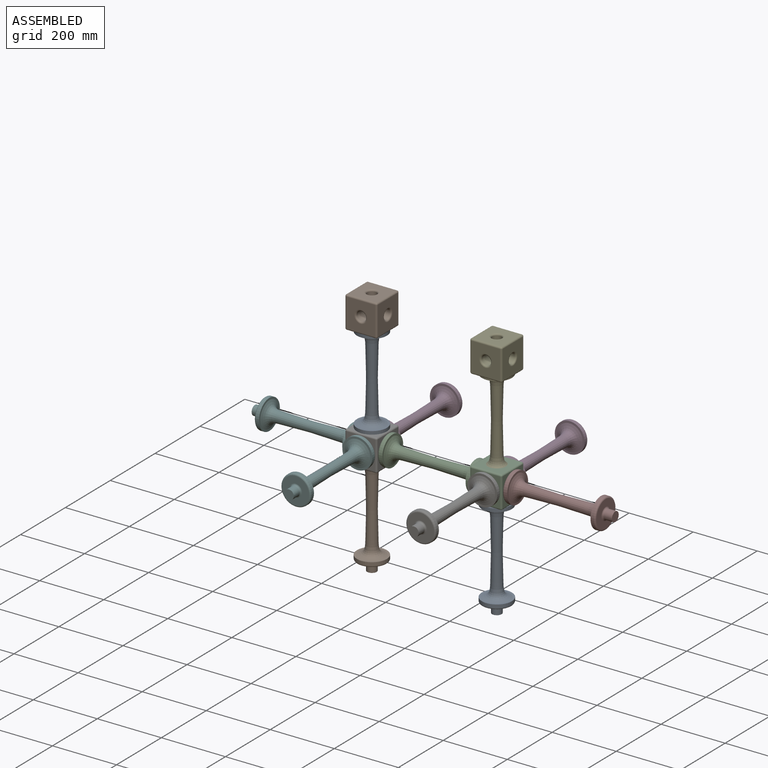
[diagram: assembled view]
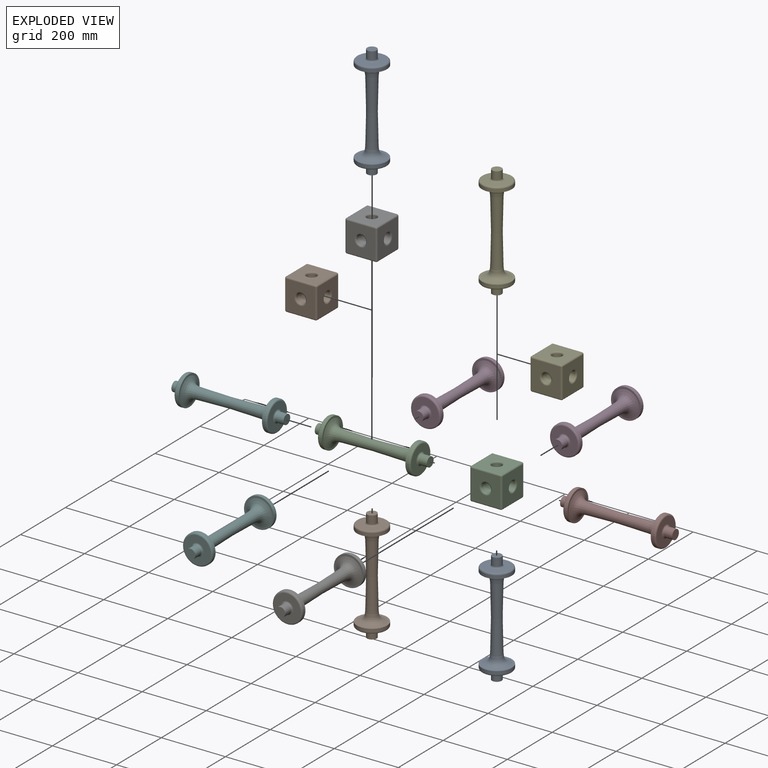
[diagram: exploded view]
GUIDED TOUR — MATED ASSEMBLY (Onshape document 2fd40caba6ee4fb005c2a538, AutoMate assembly 2fd40caba6ee4fb005c2a538_38871087ea2060881fef01aa_3f78a8c371d48ed6c31fac29_default)

This assembly has 15 components, labeled P0..P14 below (a component is one placed occurrence of a part; the same part can appear more than once), held together by 12 mates. A mate is a constraint between two components; its type names the relative motion it leaves free:
  FASTENED — locks the two components together rigidly (no relative motion).
Axis/direction vectors are unit vectors and 'through' points are millimeter coordinates, both in the assembly's world frame.

MATES
  1. FASTENED "Fastened 1": P10 <-> P2, direction (1.000, 0.000, 0.000) through (79.39, -60.10, -34.03) mm
  2. FASTENED "Fastened 3": P0 <-> P2, direction (0.000, 0.000, 1.000) through (129.39, -60.10, -84.03) mm
  3. FASTENED "Fastened 11": P4 <-> P2, direction (0.000, 0.000, 1.000) through (129.39, -60.10, 10.97) mm
  4. FASTENED "Fastened 10": P13 <-> P14, direction (1.000, 0.000, 0.000) through (-310.61, -60.10, -34.03) mm
  5. FASTENED "Fastened 6": P8 <-> P14, direction (0.000, 0.000, 1.000) through (-260.61, -60.10, 15.97) mm
  6. FASTENED "Fastened 8": P5 <-> P14, direction (0.000, 1.000, 0.000) through (-260.61, -110.10, -34.03) mm
  7. FASTENED "Fastened 9": P9 <-> P14, direction (0.000, 0.000, -1.000) through (-260.61, -60.10, -84.03) mm
  8. FASTENED "Fastened 2": P10 <-> P14, direction (-1.000, 0.000, 0.000) through (-210.61, -60.10, -34.03) mm
  9. FASTENED "Fastened 7": P7 <-> P2, direction (-1.000, 0.000, 0.000) through (179.39, -60.10, -34.03) mm
  10. FASTENED "Fastened 12": P6 <-> P2, direction (0.000, 1.000, 0.000) through (129.39, -110.10, -34.03) mm
  11. FASTENED "Fastened 5": P3 <-> P14, direction (0.000, -1.000, 0.000) through (-260.61, -10.10, -34.03) mm
  12. FASTENED "Fastened 4": P11 <-> P2, direction (0.000, -1.000, 0.000) through (129.39, -10.10, -34.03) mm

ASSEMBLY ORDER
  1. P2 — the base component [order heuristic]
  2. P1 — core [order heuristic]
  3. P14 — core [order heuristic]
  4. P10 — core [order heuristic]
  5. P12 — core [order heuristic]
  6. P4 — core [order heuristic]
  7. P9 — core [order heuristic]
  8. P8 — core [order heuristic]
  9. P13 — core [order heuristic]
  10. P6 [order verified]
  11. P5 [order verified]
  12. P11 [order verified]
  13. P3 [order verified]
  14. P0 [order verified]
  15. P7 [order verified]
(P0, P3, P5, P6, P7, P11 verified with a relaxed clearance tolerance: the source model stores slight part interference there.)
Order-tag legend:
  [order verified] — this step's position reverses a verified removal order: the component was checked to insert without passing through the ones already placed.
  [order heuristic] — the first 9 components form the assembly's core: parts whose collision-free extraction could not be verified, listed in mate-graph order.

Of the 15 components, 0 carry the full construction recipe — the FeatureScript program that regenerates the part's solid from scratch; the rest are supplied as boundary geometry only.
Because this assembly has more than 12 components, the tour below covers the 12 most significant ones individually (every recipe-attached component first, then the largest by part volume), in assembly order; the remaining 3 are summarized together in a grouped section at the end.
Each toured component is shown spotlighted twice — in the assembled view, then in the exploded view, where a leader line traces a displaced component back to its assembled socket (saturated green if recipe-attached, orange if geometry-only; every other component desaturated gray) — followed by its recipe or geometry summary and the mates that hold it.
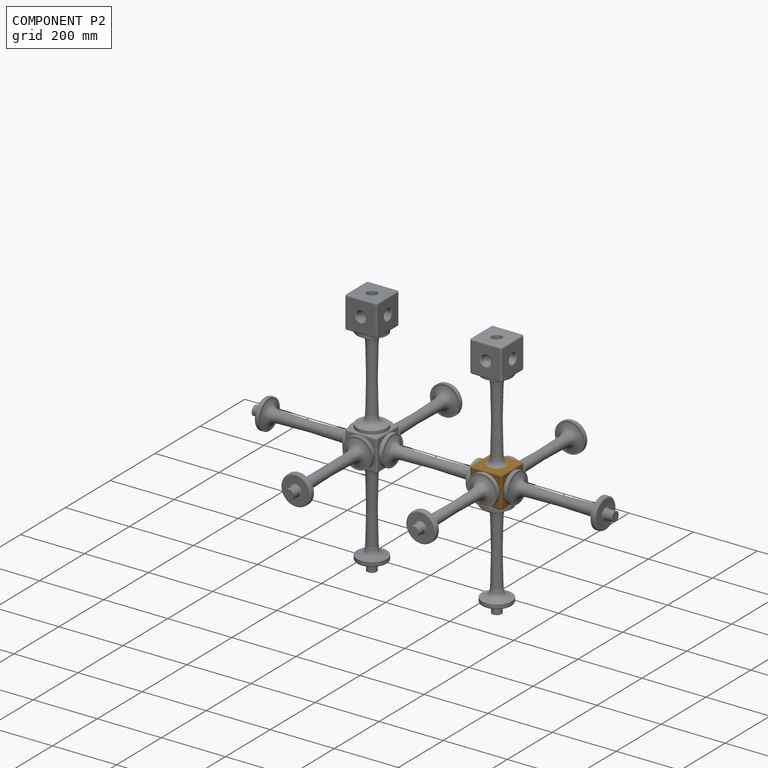
[diagram: component P2 — assembled]
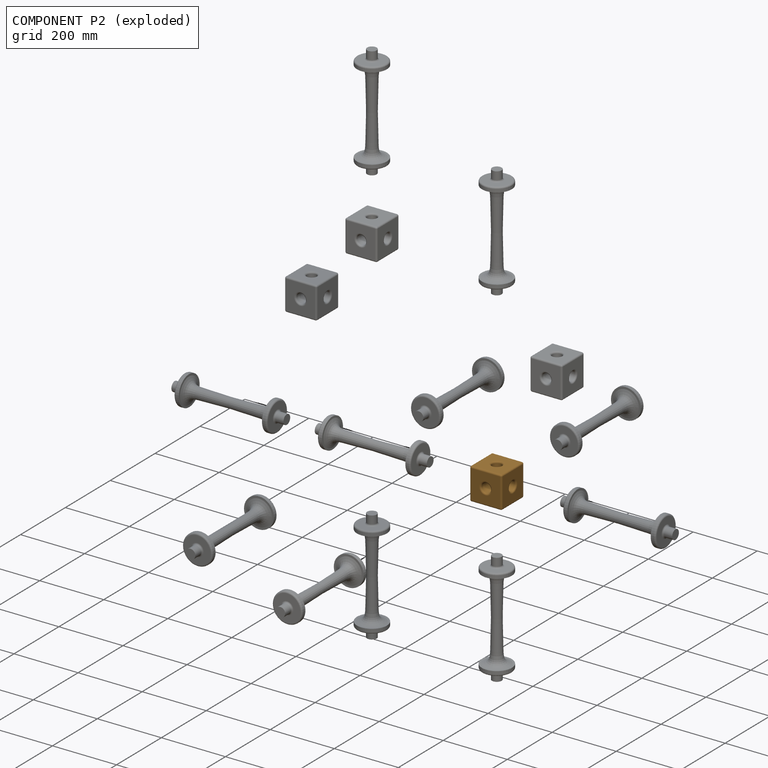
[diagram: component P2 — exploded]
COMPONENT P2 — geometry summary (no construction recipe available for this part):
  bounding box: 100.0 x 100.0 x 100.0 mm
  B-rep topology: 1 solid, 38 faces, 186 edges
  volume: 816596 mm^3 (82% of its bounding box)
  symmetry: 4-fold rotationally symmetric about the x axis; 4-fold rotationally symmetric about the y axis; 4-fold rotationally symmetric about the z axis; mirror-symmetric across its x mid-plane, y mid-plane, z mid-plane
Held by: FASTENED mate "Fastened 1" to P10; FASTENED mate "Fastened 3" to P0; FASTENED mate "Fastened 11" to P4; FASTENED mate "Fastened 7" to P7; FASTENED mate "Fastened 12" to P6; FASTENED mate "Fastened 4" to P11.
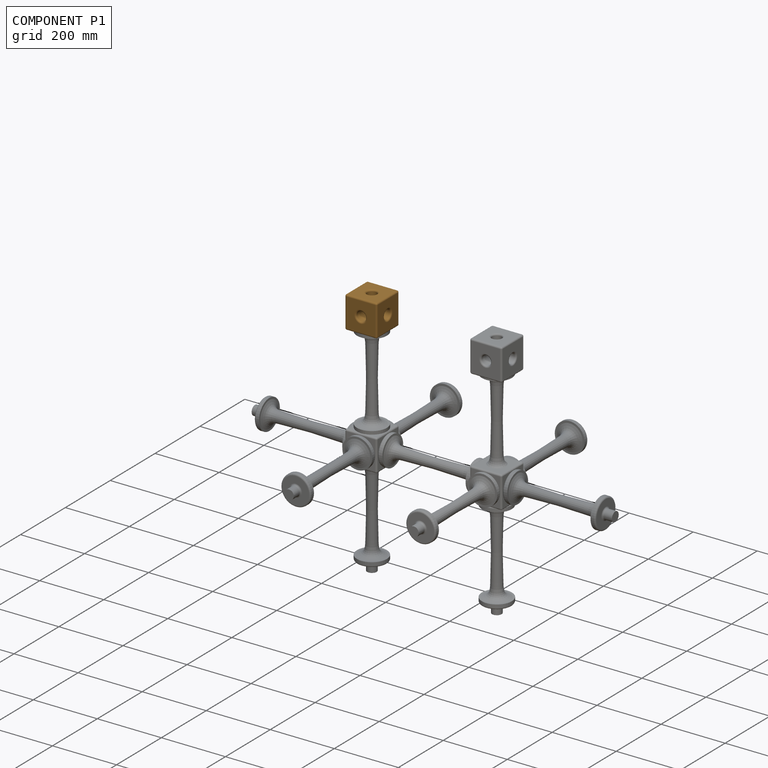
[diagram: component P1 — assembled]
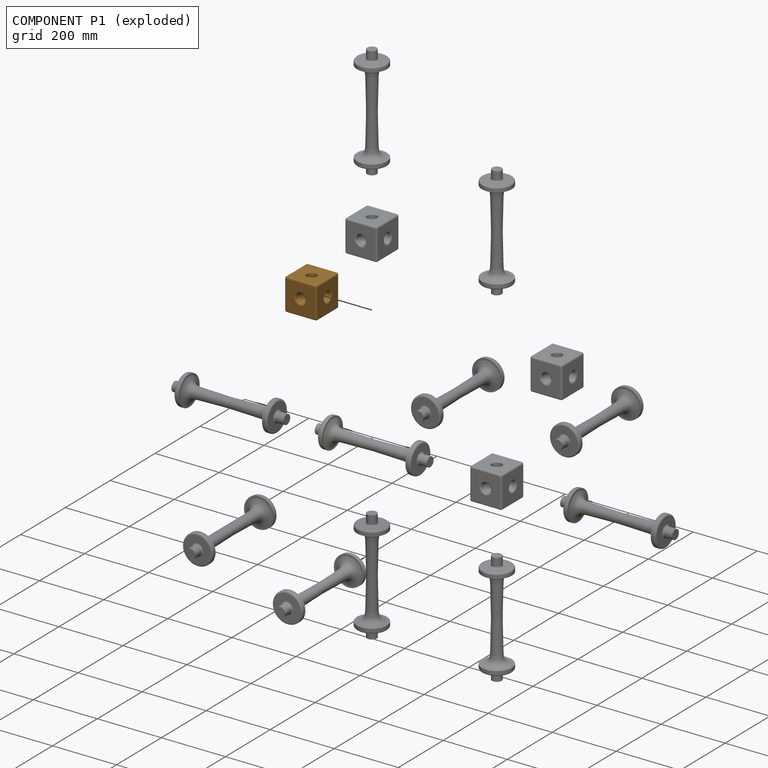
[diagram: component P1 — exploded]
COMPONENT P1 — geometry summary (no construction recipe available for this part):
  bounding box: 100.0 x 100.0 x 100.0 mm
  B-rep topology: 1 solid, 38 faces, 186 edges
  volume: 816596 mm^3 (82% of its bounding box)
  symmetry: 4-fold rotationally symmetric about the x axis; 4-fold rotationally symmetric about the y axis; 4-fold rotationally symmetric about the z axis; mirror-symmetric across its x mid-plane, y mid-plane, z mid-plane
Held by: no mates (free).
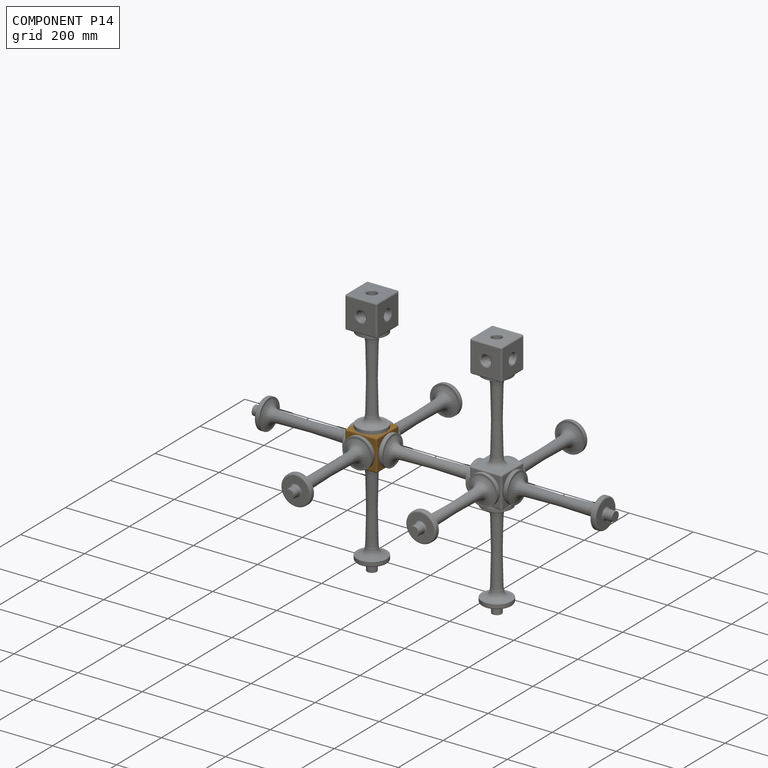
[diagram: component P14 — assembled]
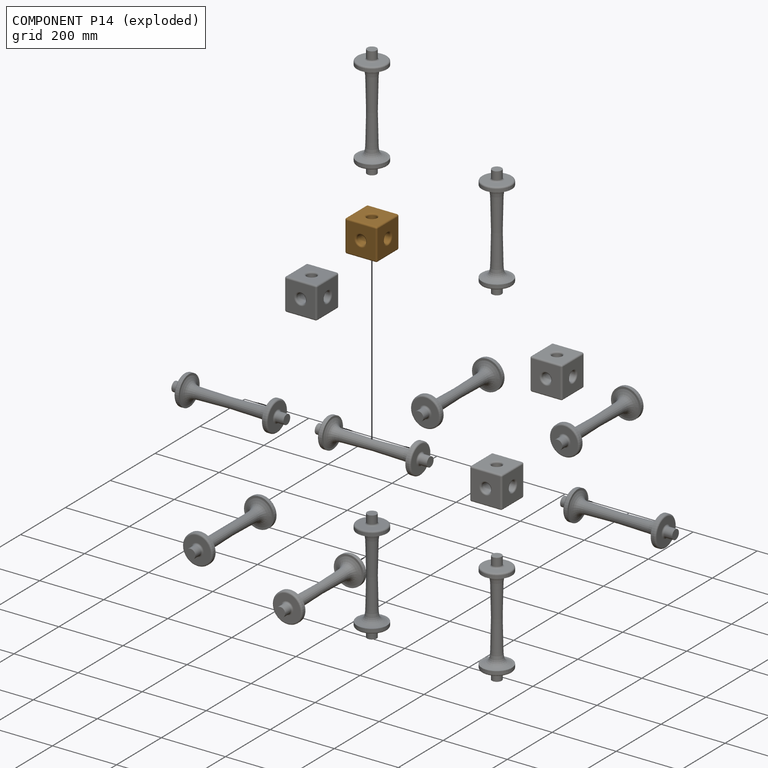
[diagram: component P14 — exploded]
COMPONENT P14 — geometry summary (no construction recipe available for this part):
  bounding box: 100.0 x 100.0 x 100.0 mm
  B-rep topology: 1 solid, 38 faces, 186 edges
  volume: 816596 mm^3 (82% of its bounding box)
  symmetry: 4-fold rotationally symmetric about the x axis; 4-fold rotationally symmetric about the y axis; 4-fold rotationally symmetric about the z axis; mirror-symmetric across its x mid-plane, y mid-plane, z mid-plane
Held by: FASTENED mate "Fastened 10" to P13; FASTENED mate "Fastened 6" to P8; FASTENED mate "Fastened 8" to P5; FASTENED mate "Fastened 9" to P9; FASTENED mate "Fastened 2" to P10; FASTENED mate "Fastened 5" to P3.
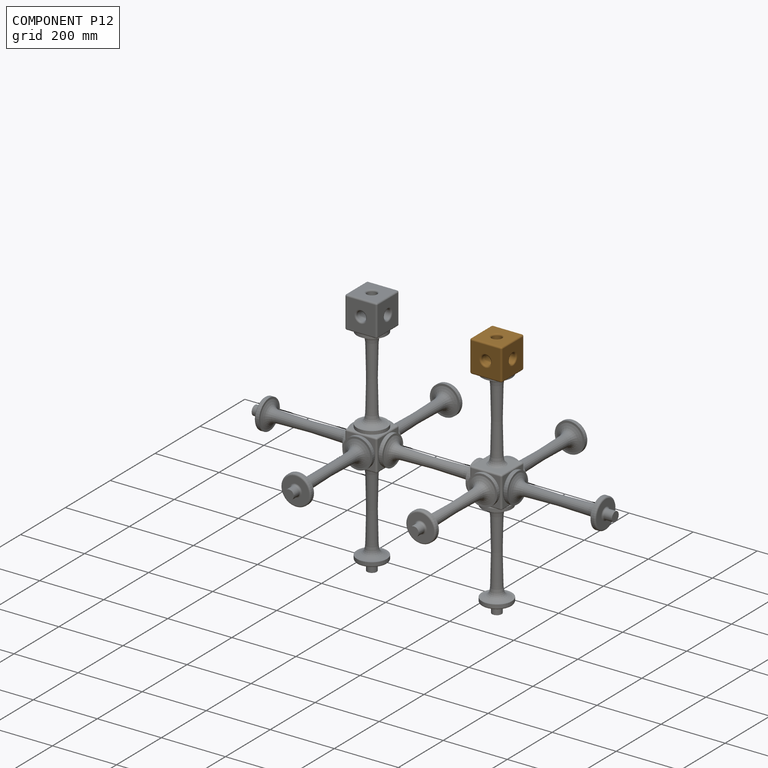
[diagram: component P12 — assembled]
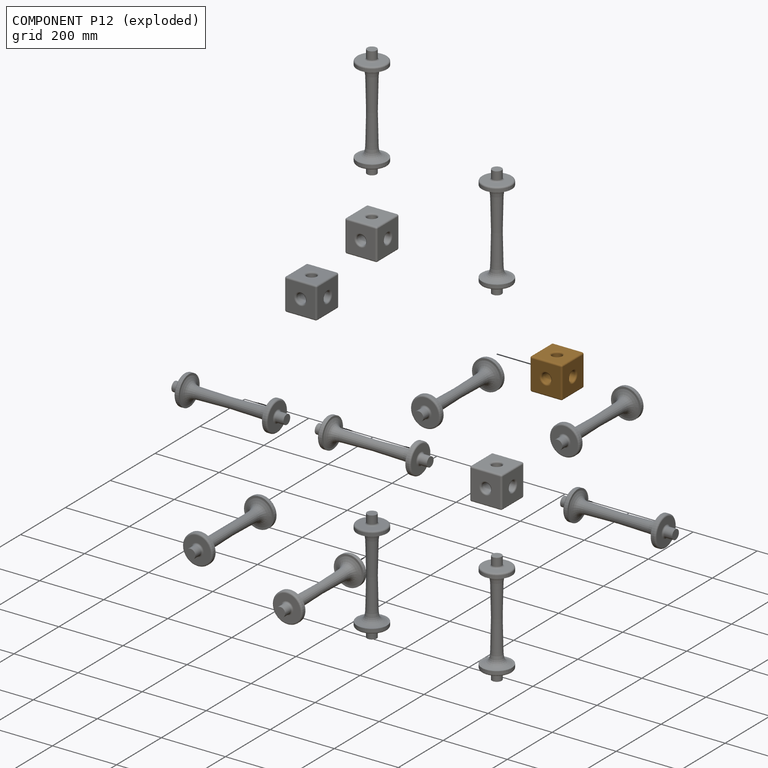
[diagram: component P12 — exploded]
COMPONENT P12 — geometry summary (no construction recipe available for this part):
  bounding box: 100.0 x 100.0 x 100.0 mm
  B-rep topology: 1 solid, 38 faces, 186 edges
  volume: 816596 mm^3 (82% of its bounding box)
  symmetry: 4-fold rotationally symmetric about the x axis; 4-fold rotationally symmetric about the y axis; 4-fold rotationally symmetric about the z axis; mirror-symmetric across its x mid-plane, y mid-plane, z mid-plane
Held by: no mates (free).
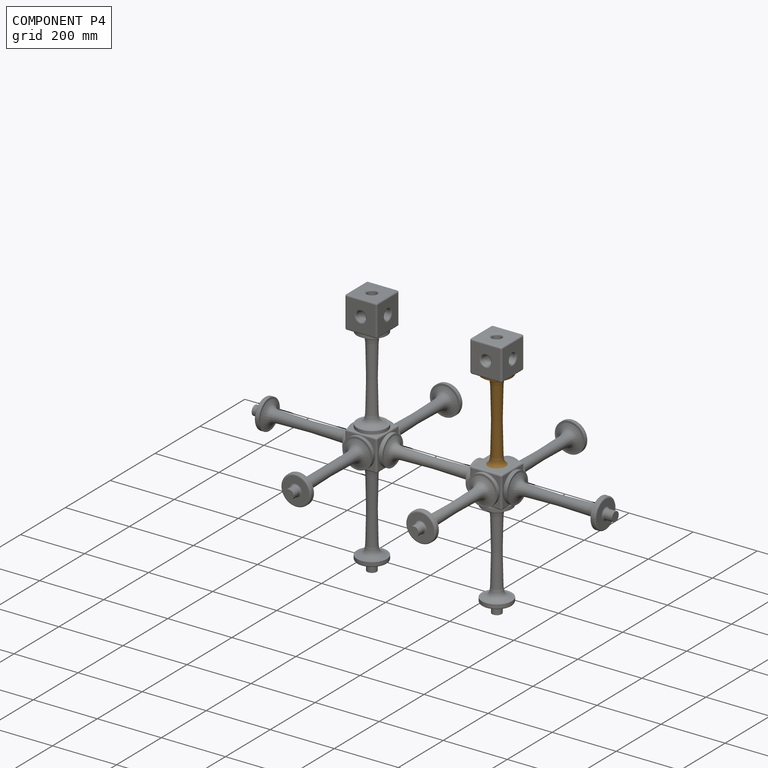
[diagram: component P4 — assembled]
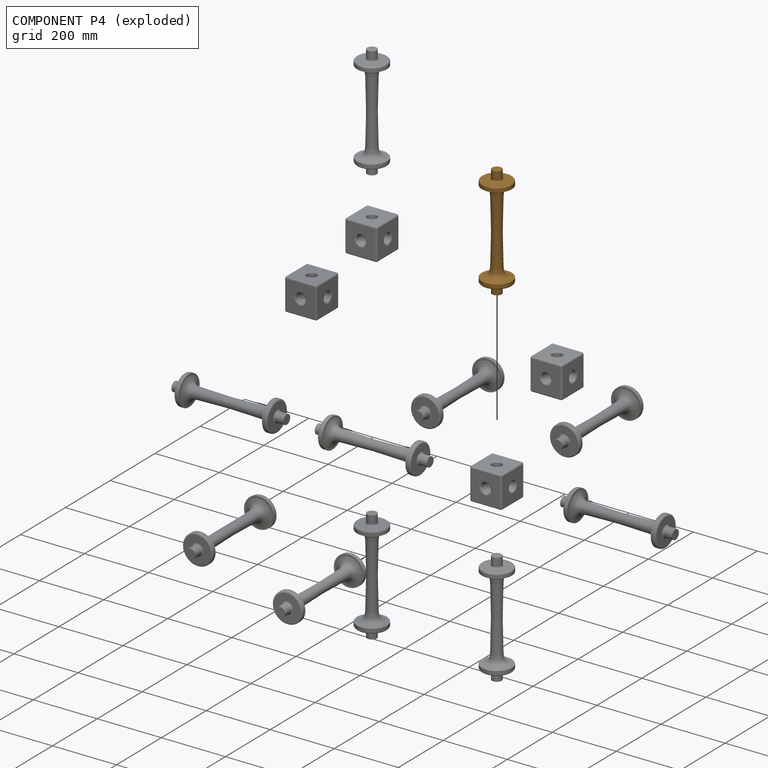
[diagram: component P4 — exploded]
COMPONENT P4 — geometry summary (no construction recipe available for this part):
  bounding box: 350.0 x 101.1 x 101.1 mm
  B-rep topology: 1 solid, 18 faces, 58 edges
  volume: 507015 mm^3 (14% of its bounding box)
  symmetry: revolution-symmetric about the x axis through its bounding-box center; 2-fold rotationally symmetric about the y axis; 2-fold rotationally symmetric about the z axis; mirror-symmetric across its x mid-plane, y mid-plane, z mid-plane
Held by: FASTENED mate "Fastened 11" to P2.
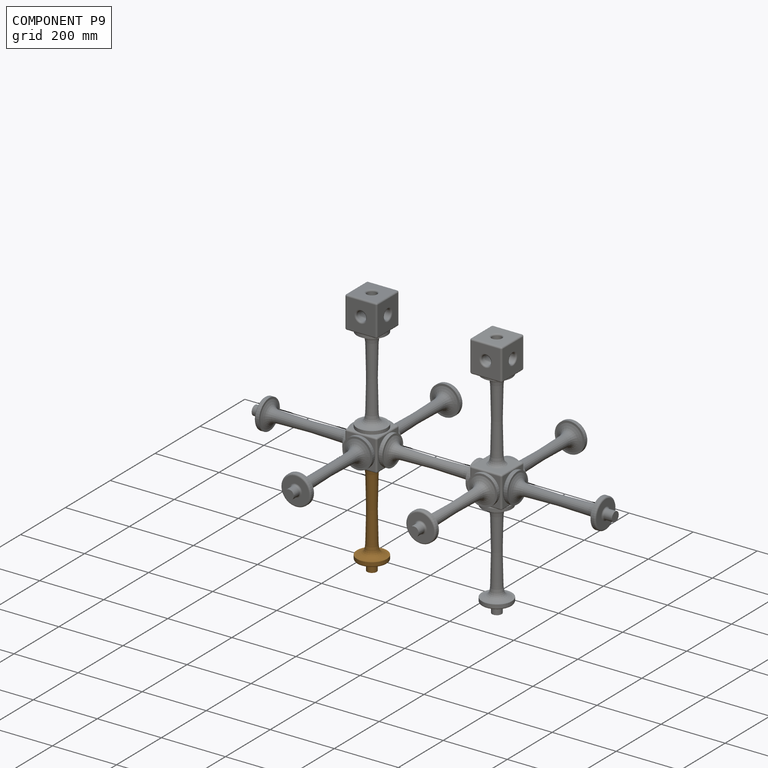
[diagram: component P9 — assembled]
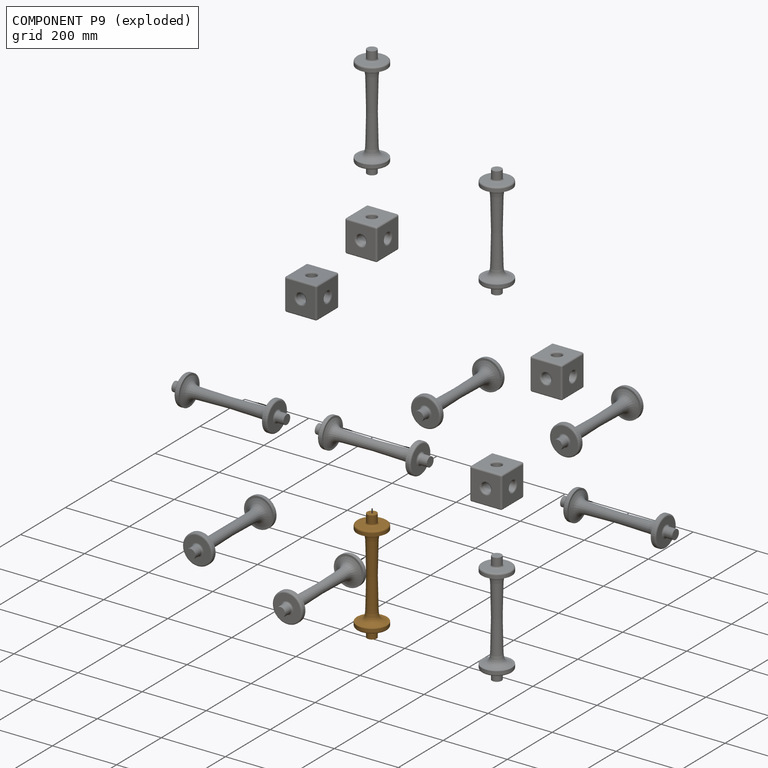
[diagram: component P9 — exploded]
COMPONENT P9 — geometry summary (no construction recipe available for this part):
  bounding box: 350.0 x 101.1 x 101.1 mm
  B-rep topology: 1 solid, 18 faces, 58 edges
  volume: 507015 mm^3 (14% of its bounding box)
  symmetry: revolution-symmetric about the x axis through its bounding-box center; 2-fold rotationally symmetric about the y axis; 2-fold rotationally symmetric about the z axis; mirror-symmetric across its x mid-plane, y mid-plane, z mid-plane
Held by: FASTENED mate "Fastened 9" to P14.
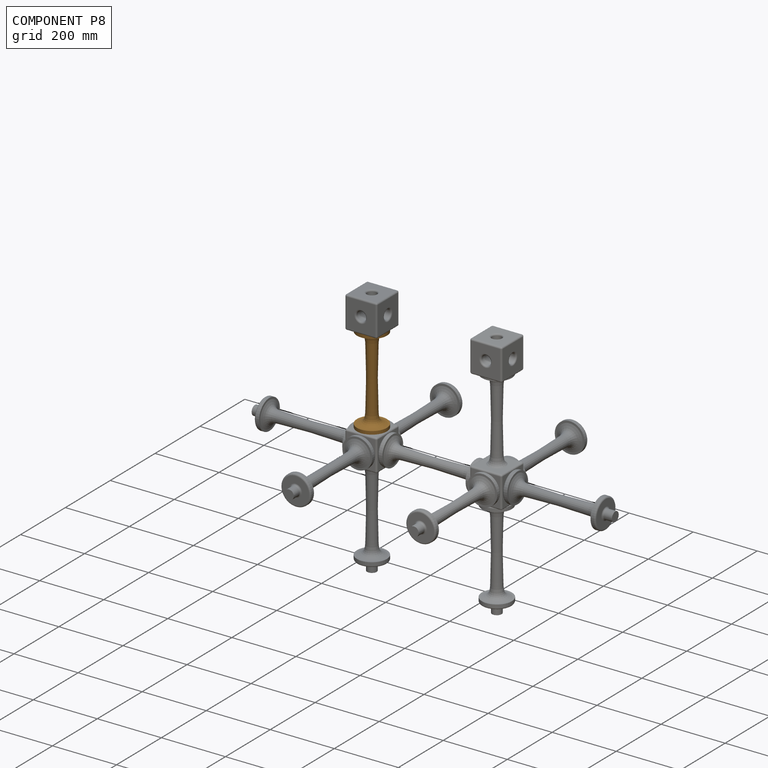
[diagram: component P8 — assembled]
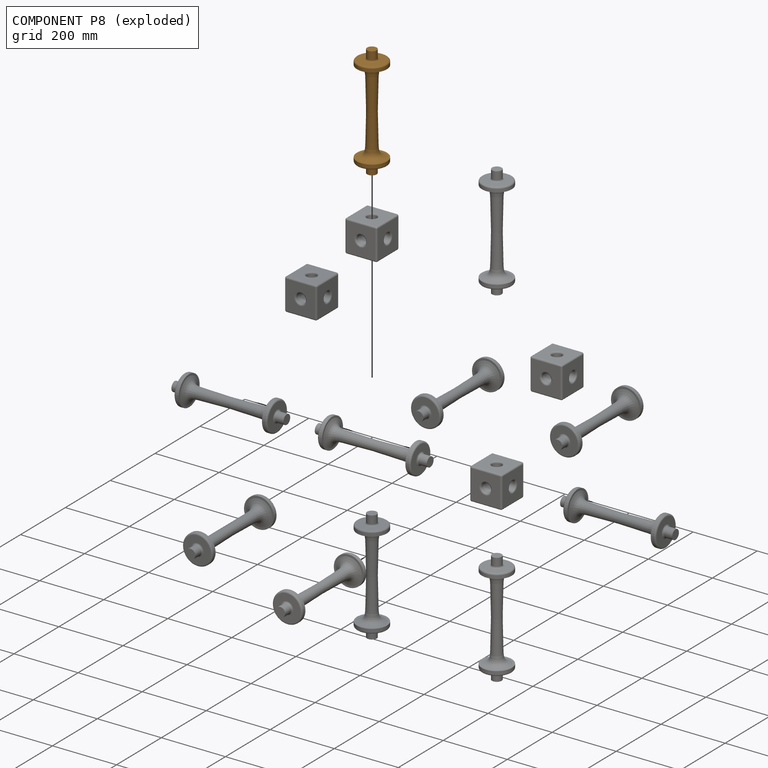
[diagram: component P8 — exploded]
COMPONENT P8 — geometry summary (no construction recipe available for this part):
  bounding box: 350.0 x 101.1 x 101.1 mm
  B-rep topology: 1 solid, 18 faces, 58 edges
  volume: 507015 mm^3 (14% of its bounding box)
  symmetry: revolution-symmetric about the x axis through its bounding-box center; 2-fold rotationally symmetric about the y axis; 2-fold rotationally symmetric about the z axis; mirror-symmetric across its x mid-plane, y mid-plane, z mid-plane
Held by: FASTENED mate "Fastened 6" to P14.
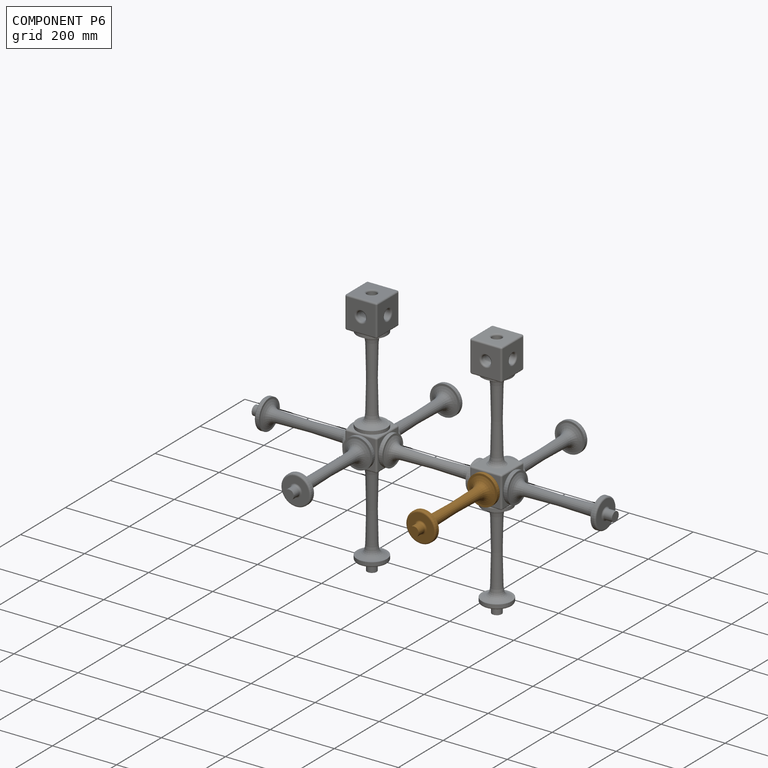
[diagram: component P6 — assembled]
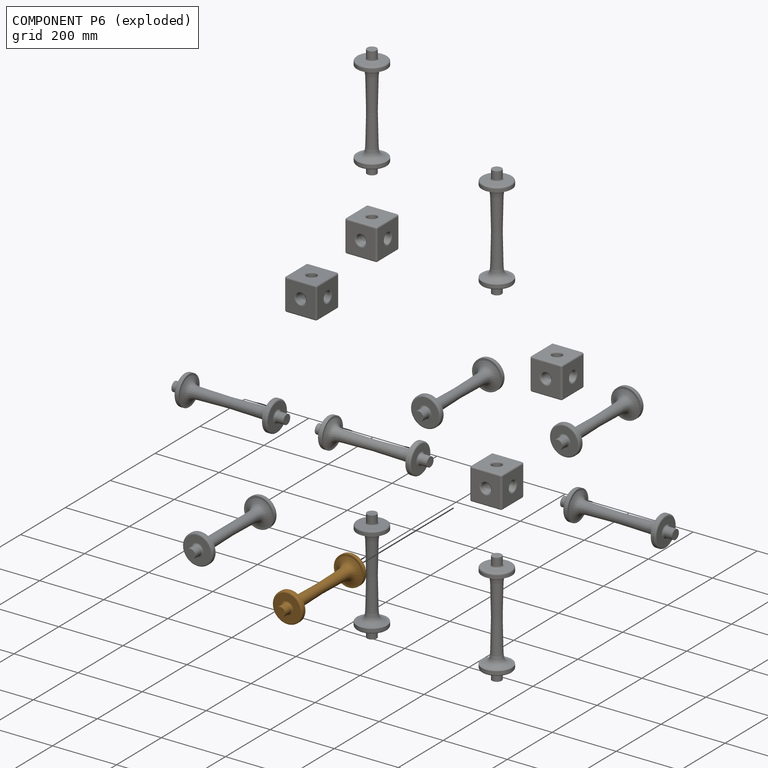
[diagram: component P6 — exploded]
COMPONENT P6 — geometry summary (no construction recipe available for this part):
  bounding box: 350.0 x 101.1 x 101.1 mm
  B-rep topology: 1 solid, 18 faces, 58 edges
  volume: 507015 mm^3 (14% of its bounding box)
  symmetry: revolution-symmetric about the x axis through its bounding-box center; 2-fold rotationally symmetric about the y axis; 2-fold rotationally symmetric about the z axis; mirror-symmetric across its x mid-plane, y mid-plane, z mid-plane
Held by: FASTENED mate "Fastened 12" to P2.
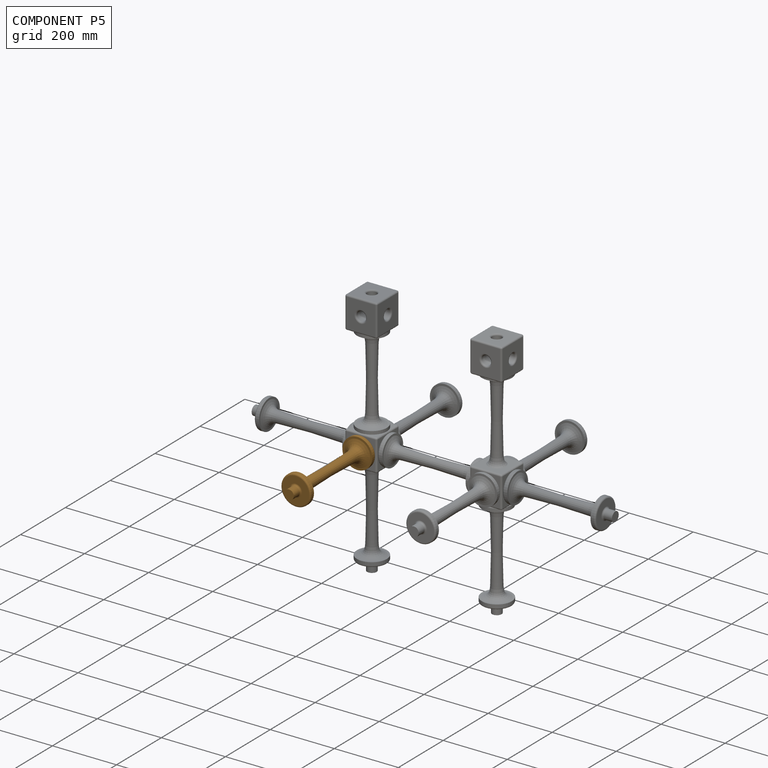
[diagram: component P5 — assembled]
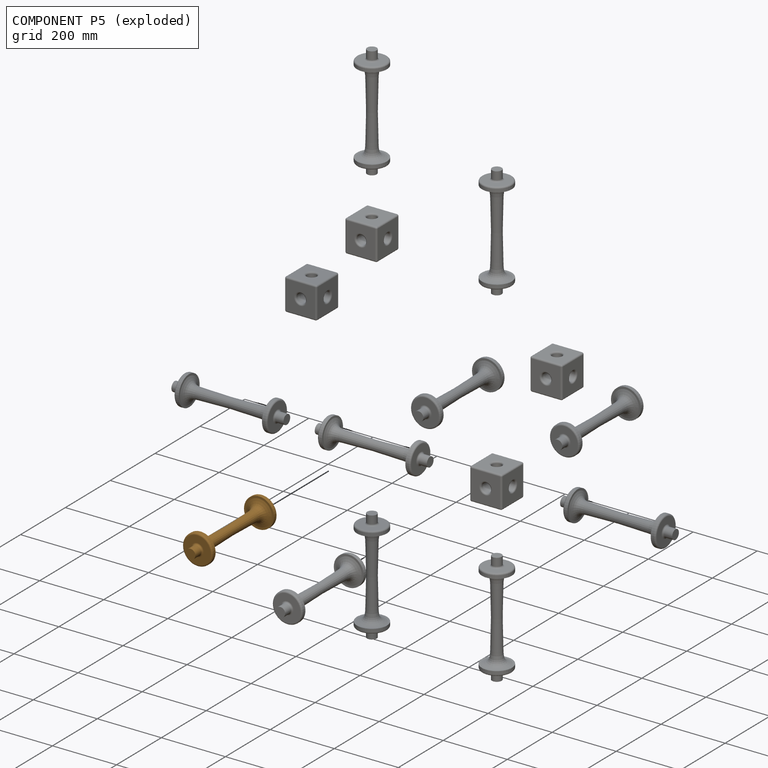
[diagram: component P5 — exploded]
COMPONENT P5 — geometry summary (no construction recipe available for this part):
  bounding box: 350.0 x 101.1 x 101.1 mm
  B-rep topology: 1 solid, 18 faces, 58 edges
  volume: 507015 mm^3 (14% of its bounding box)
  symmetry: revolution-symmetric about the x axis through its bounding-box center; 2-fold rotationally symmetric about the y axis; 2-fold rotationally symmetric about the z axis; mirror-symmetric across its x mid-plane, y mid-plane, z mid-plane
Held by: FASTENED mate "Fastened 8" to P14.
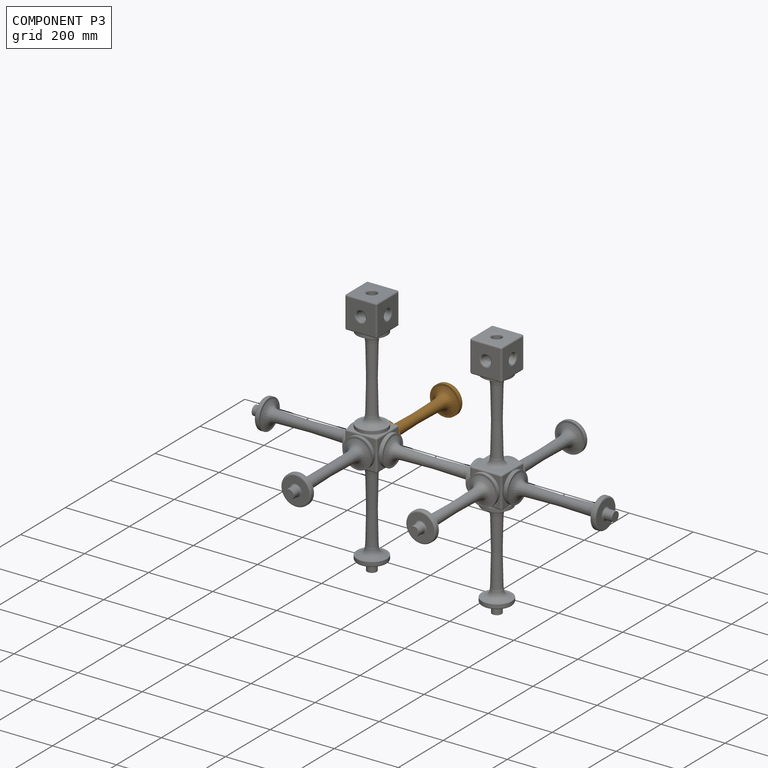
[diagram: component P3 — assembled]
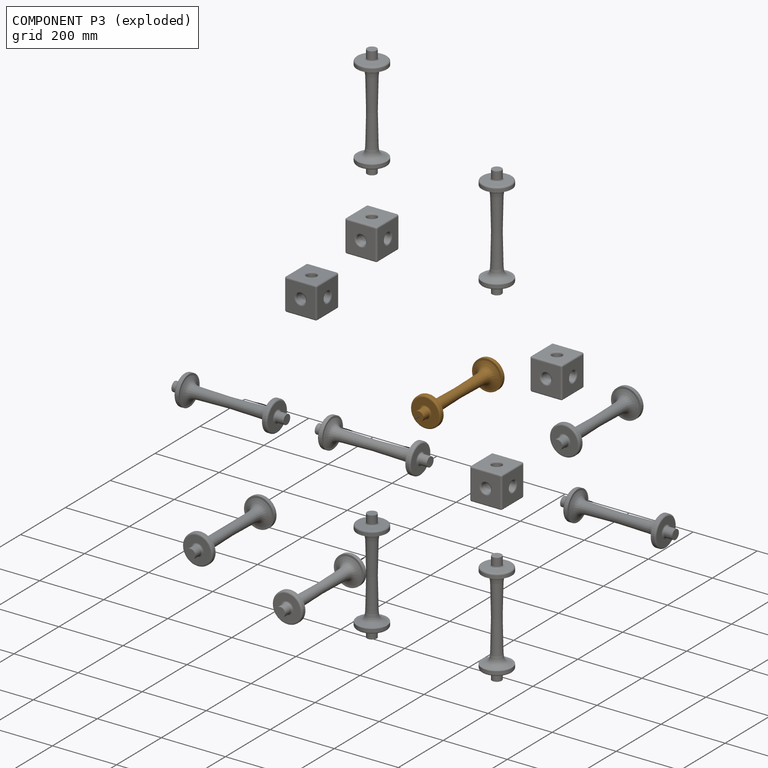
[diagram: component P3 — exploded]
COMPONENT P3 — geometry summary (no construction recipe available for this part):
  bounding box: 350.0 x 101.1 x 101.1 mm
  B-rep topology: 1 solid, 18 faces, 58 edges
  volume: 507015 mm^3 (14% of its bounding box)
  symmetry: revolution-symmetric about the x axis through its bounding-box center; 2-fold rotationally symmetric about the y axis; 2-fold rotationally symmetric about the z axis; mirror-symmetric across its x mid-plane, y mid-plane, z mid-plane
Held by: FASTENED mate "Fastened 5" to P14.
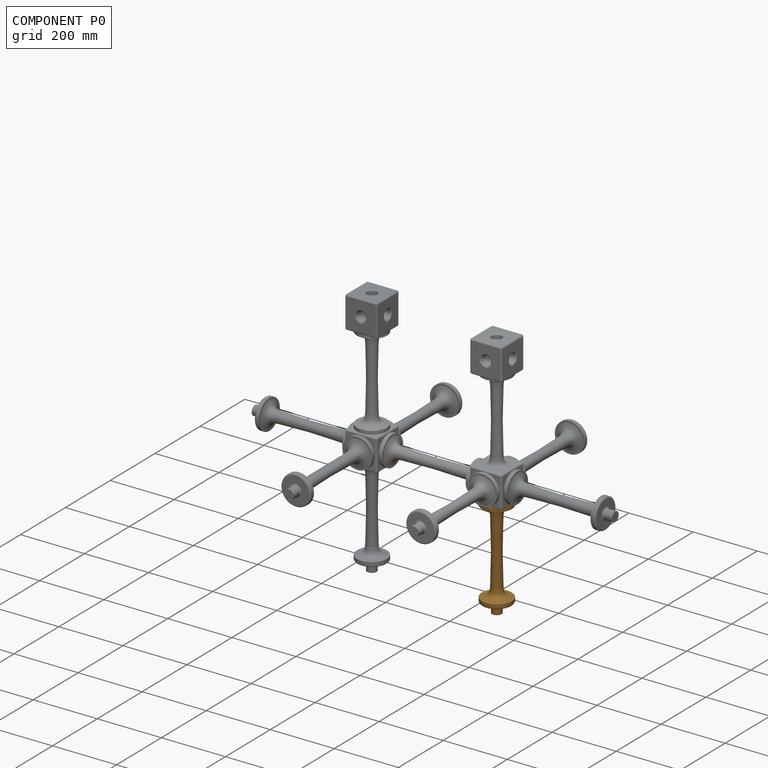
[diagram: component P0 — assembled]
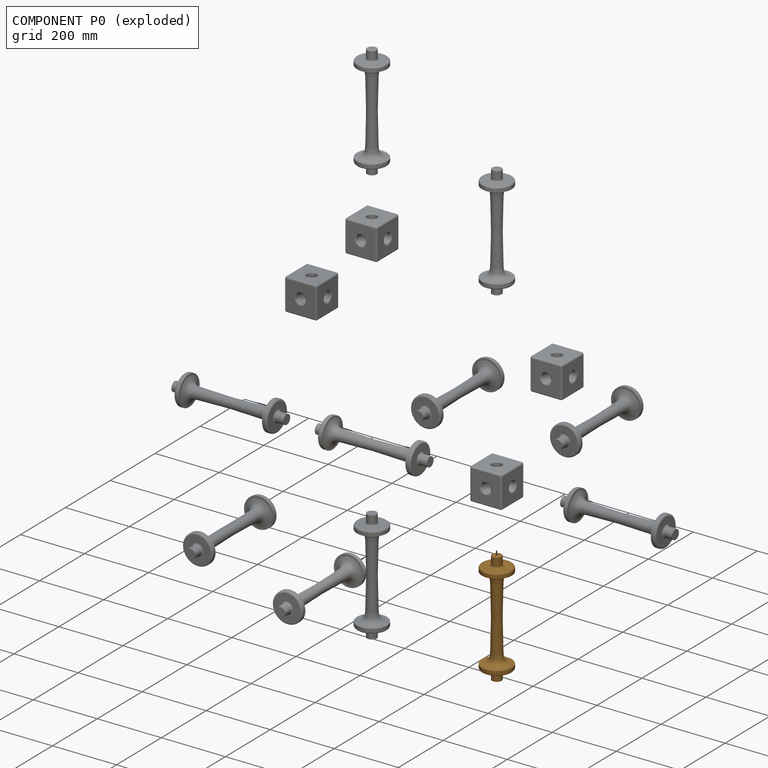
[diagram: component P0 — exploded]
COMPONENT P0 — geometry summary (no construction recipe available for this part):
  bounding box: 350.0 x 101.1 x 101.1 mm
  B-rep topology: 1 solid, 18 faces, 58 edges
  volume: 507015 mm^3 (14% of its bounding box)
  symmetry: revolution-symmetric about the x axis through its bounding-box center; 2-fold rotationally symmetric about the y axis; 2-fold rotationally symmetric about the z axis; mirror-symmetric across its x mid-plane, y mid-plane, z mid-plane
Held by: FASTENED mate "Fastened 3" to P2.
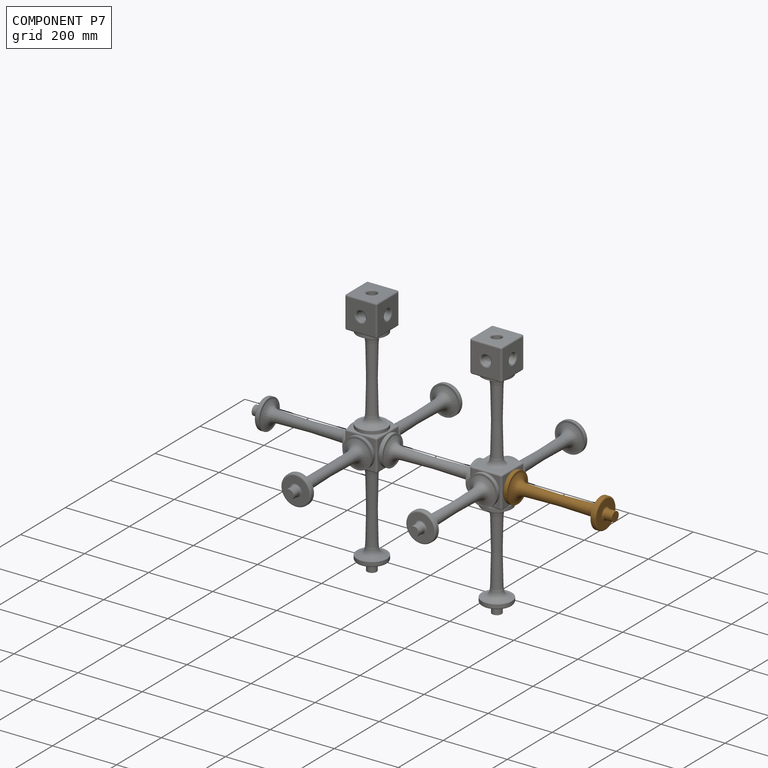
[diagram: component P7 — assembled]
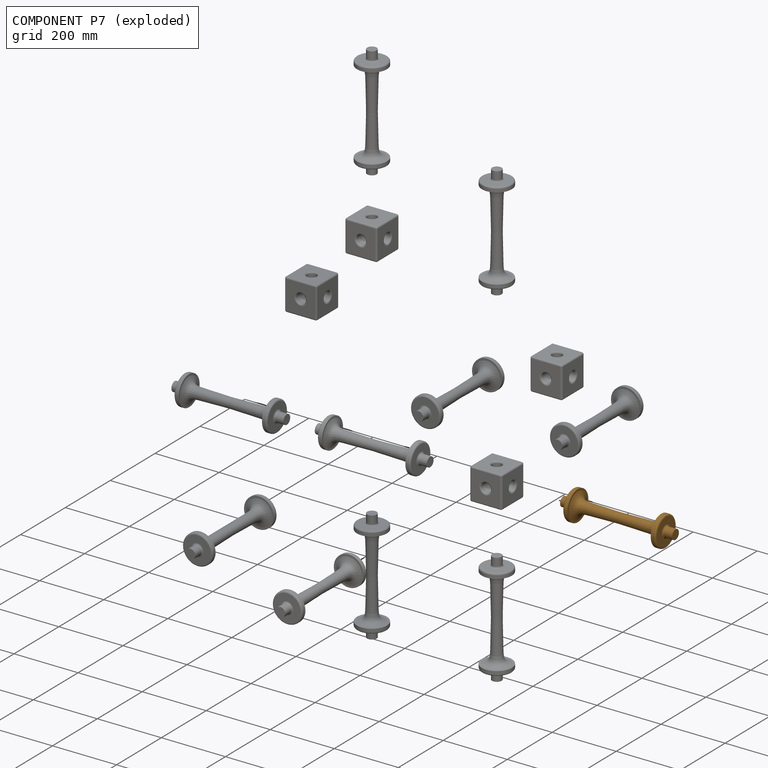
[diagram: component P7 — exploded]
COMPONENT P7 — geometry summary (no construction recipe available for this part):
  bounding box: 350.0 x 101.1 x 101.1 mm
  B-rep topology: 1 solid, 18 faces, 58 edges
  volume: 507015 mm^3 (14% of its bounding box)
  symmetry: revolution-symmetric about the x axis through its bounding-box center; 2-fold rotationally symmetric about the y axis; 2-fold rotationally symmetric about the z axis; mirror-symmetric across its x mid-plane, y mid-plane, z mid-plane
Held by: FASTENED mate "Fastened 7" to P2.
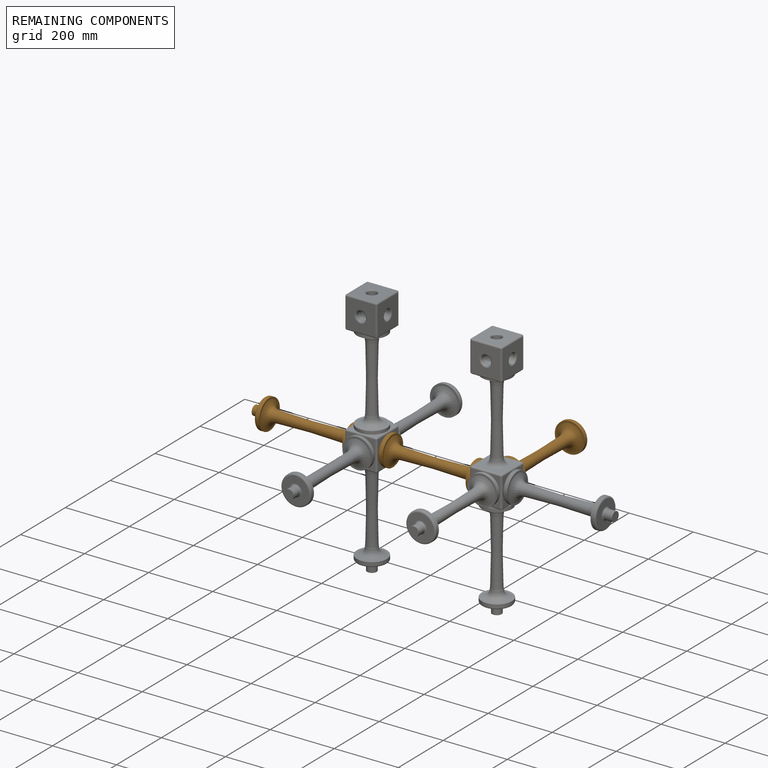
[diagram: remaining components — assembled]
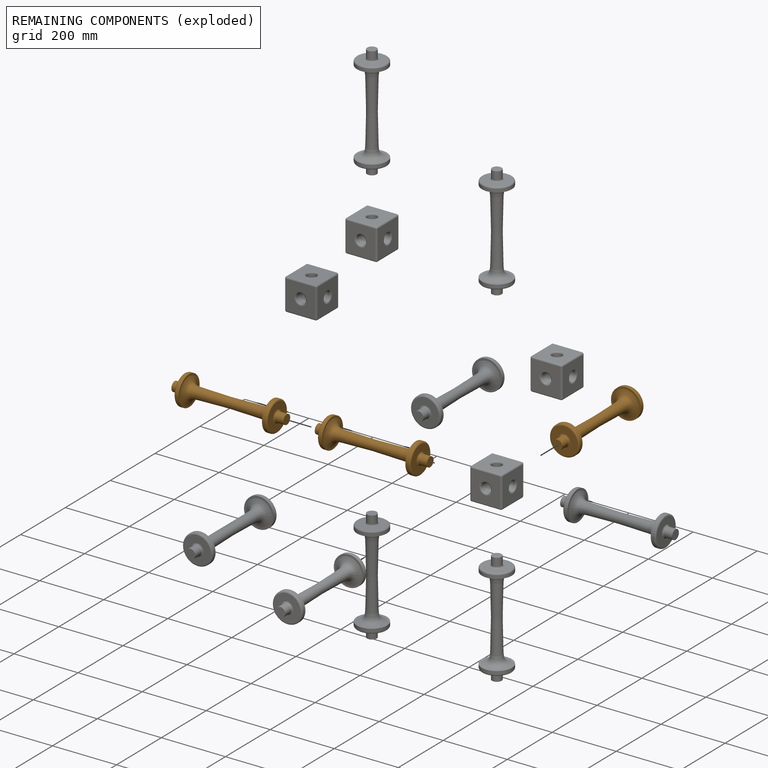
[diagram: remaining components — exploded]
REMAINING COMPONENTS (grouped) — the 3 components below fall outside the per-component tour by the significance rule stated above; both spotlight views highlight the whole group.
  P10: bounding box 350.0 x 101.1 x 101.1 mm, volume 507015 mm^3. Held by: FASTENED mate "Fastened 1" to P2; FASTENED mate "Fastened 2" to P14.
  P13: bounding box 350.0 x 101.1 x 101.1 mm, volume 507015 mm^3. Held by: FASTENED mate "Fastened 10" to P14.
  P11: bounding box 350.0 x 101.1 x 101.1 mm, volume 507015 mm^3. Held by: FASTENED mate "Fastened 4" to P2.
PROVENANCE & LICENSES
Assembly (occurrences, transforms, mates, per-part STEP geometry): AutoMate dataset, Zenodo record 7776208, CC0.
Construction recipes: CADFS (HuggingFace VladPyatov/CADFS, CC-BY-4.0, layered over the ABC dataset), FeatureScript reconstruction programs keyed by ABC model id.
Join: ABC meta listings map ABC model id -> Onshape documentId; within a shared document, parts are matched by geometric signature (bounding-box dims + volume at 0.1% relative tolerance, exact B-rep face/solid counts).
Verification: no recipe attachments in this assembly (15 components, all geometry-only).
Renders: orthographic iso camera (az 35 / el 25); the floor grid conveys scale (grid pitch printed in each image; no ruler). In the exploded view each component is displaced by its stored offset vector: the offsets alone carry the explosion direction (mate normal/axis signs are not orientation cues and do not encode it), and separation distances are assigned per mate-chain, not proportionally to assembly-order depth.
